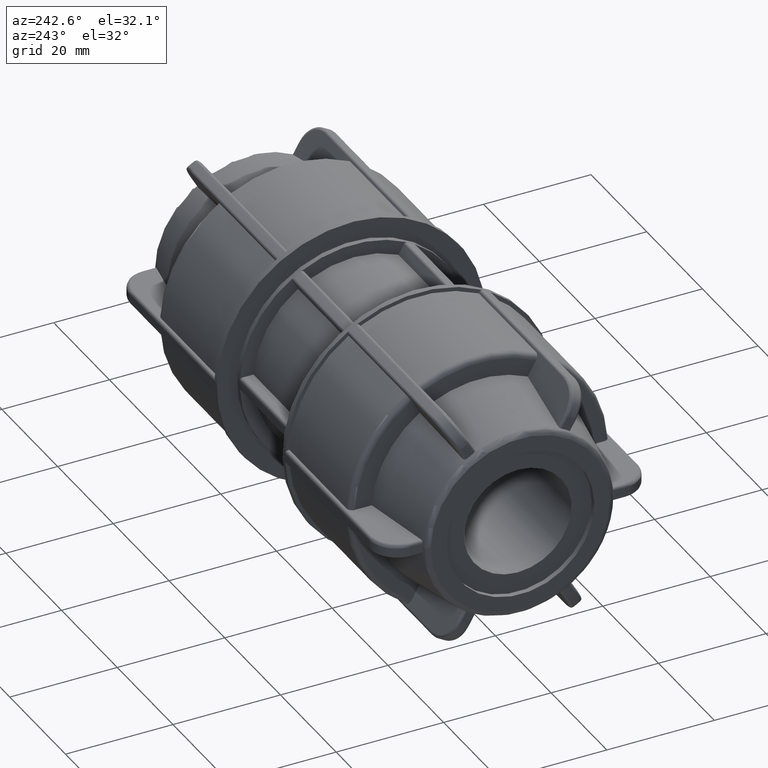
[diagram: clean part render]
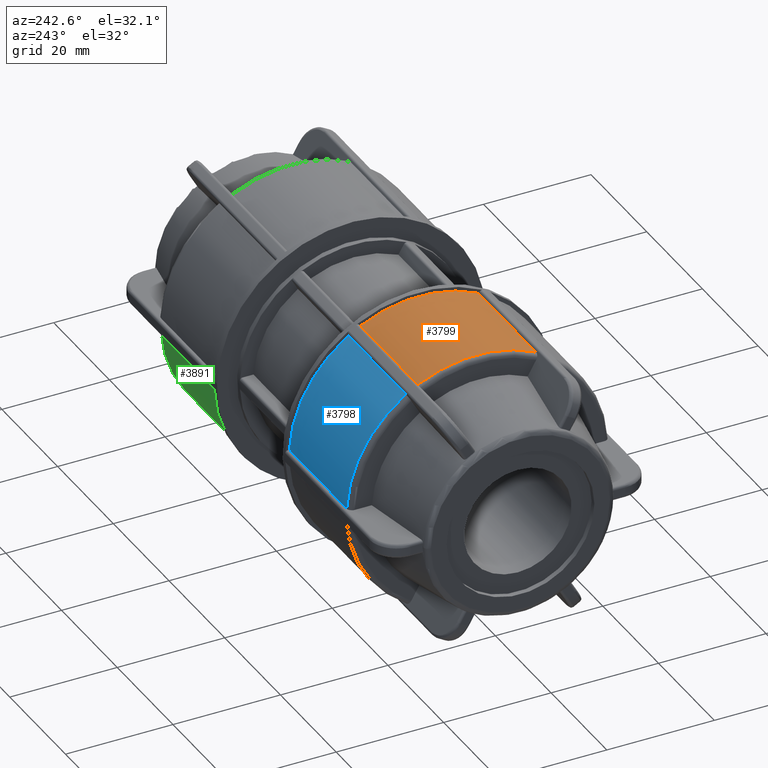
[diagram: same view with three faces highlighted in distinct colors, each labeled with its STEP entity id]
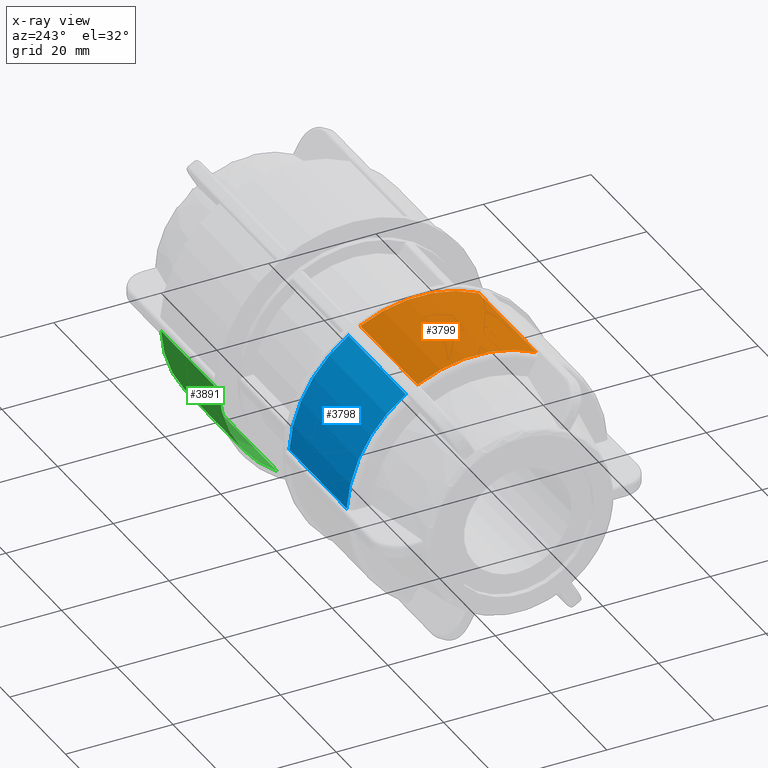
[diagram: x-ray of the same camera — body ghosted, the three highlighted faces saturated]
A machine part, auxiliary view with three faces highlighted in distinct colors.
The next image is the same camera in x-ray (body ghosted, the three faces saturated) — at least one of them is partly hidden behind the body in this view.
Their STEP definitions:

[orange] entity #3799 — the highlighted cylindrical surface (partial cylindrical patch) has radius 24.25 mm, axis along (1, 0, 0).
#413=FACE_OUTER_BOUND('',#655,.T.);
#655=EDGE_LOOP('',(#2968,#2969,#2970,#2971));
#894=LINE('',#6319,#1122);
#909=LINE('',#6588,#1137);
#1122=VECTOR('',#4796,20.58);
#1137=VECTOR('',#4861,20.58);
#1368=CIRCLE('',#4137,24.25);
#1374=CIRCLE('',#4149,24.25);
#1640=VERTEX_POINT('',#6316);
#1641=VERTEX_POINT('',#6318);
#1668=VERTEX_POINT('',#6576);
#1669=VERTEX_POINT('',#6587);
#2084=EDGE_CURVE('',#1641,#1640,#894,.T.);
#2127=EDGE_CURVE('',#1669,#1668,#909,.T.);
#2165=EDGE_CURVE('',#1641,#1668,#1368,.T.);
#2173=EDGE_CURVE('',#1669,#1640,#1374,.T.);
#2968=ORIENTED_EDGE('',*,*,#2084,.T.);
#2969=ORIENTED_EDGE('',*,*,#2173,.F.);
#2970=ORIENTED_EDGE('',*,*,#2127,.T.);
#2971=ORIENTED_EDGE('',*,*,#2165,.F.);
#3647=CYLINDRICAL_SURFACE('',#4148,24.25);
#3799=ADVANCED_FACE('',(#413),#3647,.T.);
#4137=AXIS2_PLACEMENT_3D('',#6712,#4927,#4928);
#4148=AXIS2_PLACEMENT_3D('',#6736,#4950,#4951);
#4149=AXIS2_PLACEMENT_3D('',#6737,#4952,#4953);
#4796=DIRECTION('',(1.,3.06161699786838E-16,0.));
#4861=DIRECTION('',(-1.,-3.06161699786838E-16,0.));
#4927=DIRECTION('center_axis',(-1.,-3.06161699786838E-16,0.));
#4928=DIRECTION('ref_axis',(3.03308352088316E-16,-1.,1.83697019872103E-16));
#4950=DIRECTION('center_axis',(1.,3.06161699786838E-16,0.));
#4951=DIRECTION('ref_axis',(-5.2707459866403E-17,1.,0.));
#4952=DIRECTION('center_axis',(1.,3.06161699786838E-16,0.));
#4953=DIRECTION('ref_axis',(0.,0.,-1.));
#6316=CARTESIAN_POINT('',(-12.74,-11.0263492835818,21.5981971811643));
#6318=CARTESIAN_POINT('',(-33.32,-11.0263492835818,21.5981971811643));
#6319=CARTESIAN_POINT('',(-23.52,-11.0263492835818,21.5981971811643));
#6576=CARTESIAN_POINT('',(-33.32,11.0263492835818,21.5981971811643));
#6587=CARTESIAN_POINT('',(-12.74,11.0263492835818,21.5981971811643));
#6588=CARTESIAN_POINT('',(-23.52,11.0263492835818,21.5981971811643));
#6712=CARTESIAN_POINT('Origin',(-33.32,-1.02013078368975E-14,0.));
#6736=CARTESIAN_POINT('Origin',(-23.52,-7.20092317898644E-15,0.));
#6737=CARTESIAN_POINT('Origin',(-12.74,-3.90050005528432E-15,0.));

[blue] entity #3798 — the highlighted cylindrical surface (partial cylindrical patch) has radius 24.25 mm, axis along (1, 0, 0).
#412=FACE_OUTER_BOUND('',#654,.T.);
#654=EDGE_LOOP('',(#2964,#2965,#2966,#2967));
#903=LINE('',#6480,#1131);
#925=LINE('',#6735,#1153);
#1131=VECTOR('',#4835,20.58);
#1153=VECTOR('',#4949,20.58);
#1367=CIRCLE('',#4135,24.25);
#1373=CIRCLE('',#4147,24.25);
#1656=VERTEX_POINT('',#6477);
#1657=VERTEX_POINT('',#6479);
#1690=VERTEX_POINT('',#6699);
#1692=VERTEX_POINT('',#6733);
#2109=EDGE_CURVE('',#1657,#1656,#903,.T.);
#2163=EDGE_CURVE('',#1657,#1690,#1367,.T.);
#2171=EDGE_CURVE('',#1692,#1656,#1373,.T.);
#2172=EDGE_CURVE('',#1692,#1690,#925,.T.);
#2964=ORIENTED_EDGE('',*,*,#2109,.T.);
#2965=ORIENTED_EDGE('',*,*,#2171,.F.);
#2966=ORIENTED_EDGE('',*,*,#2172,.T.);
#2967=ORIENTED_EDGE('',*,*,#2163,.F.);
#3646=CYLINDRICAL_SURFACE('',#4146,24.25);
#3798=ADVANCED_FACE('',(#412),#3646,.T.);
#4135=AXIS2_PLACEMENT_3D('',#6700,#4923,#4924);
#4146=AXIS2_PLACEMENT_3D('',#6732,#4945,#4946);
#4147=AXIS2_PLACEMENT_3D('',#6734,#4947,#4948);
#4835=DIRECTION('',(1.,3.06161699786838E-16,0.));
#4923=DIRECTION('center_axis',(-1.,-3.06161699786838E-16,0.));
#4924=DIRECTION('ref_axis',(3.03308352088316E-16,-1.,1.83697019872103E-16));
#4945=DIRECTION('center_axis',(1.,3.06161699786838E-16,0.));
#4946=DIRECTION('ref_axis',(-5.2707459866403E-17,1.,0.));
#4947=DIRECTION('center_axis',(1.,3.06161699786838E-16,0.));
#4948=DIRECTION('ref_axis',(0.,0.,-1.));
#4949=DIRECTION('',(-1.,-3.06161699786838E-16,0.));
#6477=CARTESIAN_POINT('',(-12.74,13.1914127930429,20.3481971811643));
#6479=CARTESIAN_POINT('',(-33.32,13.1914127930429,20.3481971811643));
#6480=CARTESIAN_POINT('',(-23.52,13.1914127930429,20.3481971811643));
#6699=CARTESIAN_POINT('',(-33.32,24.2177620766247,1.25));
#6700=CARTESIAN_POINT('Origin',(-33.32,-1.02013078368975E-14,0.));
#6732=CARTESIAN_POINT('Origin',(-23.52,-7.20092317898644E-15,0.));
#6733=CARTESIAN_POINT('',(-12.74,24.2177620766247,1.25));
#6734=CARTESIAN_POINT('Origin',(-12.74,-3.90050005528432E-15,0.));
#6735=CARTESIAN_POINT('',(-23.52,24.2177620766247,1.25));

[green] entity #3891 — the highlighted cylindrical surface (partial cylindrical patch) has radius 24.25 mm, axis along (1, 0, 0).
#505=FACE_OUTER_BOUND('',#757,.T.);
#757=EDGE_LOOP('',(#3448,#3449,#3450,#3451));
#954=LINE('',#7118,#1182);
#1010=LINE('',#7928,#1238);
#1182=VECTOR('',#5126,20.58);
#1238=VECTOR('',#5364,20.58);
#1452=CIRCLE('',#4301,24.25);
#1458=CIRCLE('',#4313,24.25);
#1747=VERTEX_POINT('',#7115);
#1748=VERTEX_POINT('',#7117);
#1839=VERTEX_POINT('',#7911);
#1841=VERTEX_POINT('',#7927);
#2254=EDGE_CURVE('',#1748,#1747,#954,.T.);
#2392=EDGE_CURVE('',#1747,#1839,#1452,.T.);
#2399=EDGE_CURVE('',#1839,#1841,#1010,.T.);
#2400=EDGE_CURVE('',#1748,#1841,#1458,.T.);
#3448=ORIENTED_EDGE('',*,*,#2254,.T.);
#3449=ORIENTED_EDGE('',*,*,#2392,.T.);
#3450=ORIENTED_EDGE('',*,*,#2399,.T.);
#3451=ORIENTED_EDGE('',*,*,#2400,.F.);
#3683=CYLINDRICAL_SURFACE('',#4312,24.25);
#3891=ADVANCED_FACE('',(#505),#3683,.T.);
#4301=AXIS2_PLACEMENT_3D('',#7913,#5339,#5340);
#4312=AXIS2_PLACEMENT_3D('',#7926,#5362,#5363);
#4313=AXIS2_PLACEMENT_3D('',#7929,#5365,#5366);
#5126=DIRECTION('',(-1.,-3.06161699786838E-16,0.));
#5339=DIRECTION('center_axis',(1.,3.06161699786838E-16,0.));
#5340=DIRECTION('ref_axis',(0.,0.,-1.));
#5362=DIRECTION('center_axis',(1.,3.06161699786838E-16,0.));
#5363=DIRECTION('ref_axis',(-5.59615939707274E-16,1.,0.));
#5364=DIRECTION('',(1.,3.06161699786838E-16,0.));
#5365=DIRECTION('center_axis',(1.,3.06161699786838E-16,0.));
#5366=DIRECTION('ref_axis',(3.03308352088316E-16,-1.,1.83697019872103E-16));
#7115=CARTESIAN_POINT('',(12.74,13.1914127930429,-20.3481971811644));
#7117=CARTESIAN_POINT('',(33.32,13.1914127930429,-20.3481971811644));
#7118=CARTESIAN_POINT('',(23.52,13.1914127930429,-20.3481971811644));
#7911=CARTESIAN_POINT('',(12.74,24.2177620766247,-1.25));
#7913=CARTESIAN_POINT('Origin',(12.74,3.90050005528432E-15,0.));
#7926=CARTESIAN_POINT('Origin',(23.52,7.20092317898644E-15,0.));
#7927=CARTESIAN_POINT('',(33.32,24.2177620766247,-1.25));
#7928=CARTESIAN_POINT('',(23.52,24.2177620766247,-1.25));
#7929=CARTESIAN_POINT('Origin',(33.32,1.02013078368975E-14,0.));